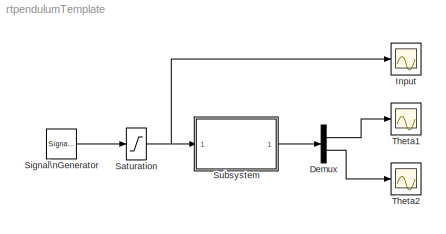
MODEL rtpendulumTemplate
KIND model
BLOCK [Demux] Demux
  DisplayOption = bar
  Outputs = 2
  Ports = [1, 2]
  SID = 1
BLOCK [Scope] Input
  DataFormat = StructureWithTime
  Floating = off
  NumInputPorts = 1
  Ports = [1]
  SID = 2
  SampleTime = 0
  ShowLegends = off
BLOCK [Saturate] Saturation
  InputPortMap = u0
  LowerLimit = -1
  Ports = [1, 1]
  SID = 3
  UpperLimit = 1
BLOCK [SignalGenerator] Signal\nGenerator
  Amplitude = 0.3
  Ports = [0, 1]
  SID = 4
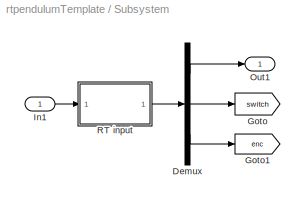
BLOCK [SubSystem] Subsystem
  FunctionWithSeparateData = off
  MaskDisplay = disp('Rotational\\nPendulum')
  MaskHideContents = off
  MaskIconFrame = on
  MaskIconOpaque = on
  MaskIconRotate = none
  MaskIconUnits = autoscale
  MaskPortRotate = default
  MinAlgLoopOccurrences = off
  Opaque = off
  Ports = [1, 1]
  PropExecContextOutsideSubsystem = off
  RTWSystemCode = Auto
  RequestExecContextInheritance = off
  SID = 5
BLOCK [Demux] Subsystem/Demux
  DisplayOption = bar
  Outputs = [2 4 1]
  Ports = [1, 3]
  SID = 7
BLOCK [Goto] Subsystem/Goto
  GotoTag = switch
  SID = 8
  TagVisibility = global
BLOCK [Goto] Subsystem/Goto1
  GotoTag = enc
  SID = 9
  TagVisibility = global
BLOCK [Inport] Subsystem/In1
  IconDisplay = Port number
  SID = 6
BLOCK [Outport] Subsystem/Out1
  IconDisplay = Port number
  SID = 22
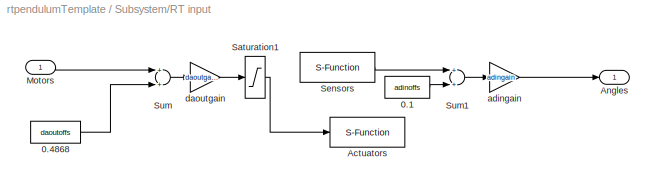
BLOCK [SubSystem] Subsystem/RT input
  FunctionWithSeparateData = off
  MaskCallbackString = |
  MaskDisplay = disp('Rotational\\nPendulum')
  MaskEnableString = on,on
  MaskHideContents = off
  MaskIconFrame = on
  MaskIconOpaque = on
  MaskIconRotate = none
  MaskIconUnits = autoscale
  MaskInitialization = hwinit;\n\n% initialize FPGA\nfugihandle = fugiboard('Open', 'Pendulum1');\nfugihandle.WatchdogTimeout = 0.5;\nfugiboard('SetParams', fugihandle);\nfugiboard('Write', fugihandle, 0, 0, 0, 0);  % dummy write to sync interface board\nfugiboard('Write', fugihandle, 5, 1, 0, 0);  % reset position, activate relay\ndata = fugiboard('Read', fugihandle);        % get version info from FPGA\n% model = bits...<+307ch>
  MaskPortRotate = default
  MaskPromptString = Sample time [s]:|Channels to read (e.g., [6 7])
  MaskStyleString = edit,edit
  MaskToolTipString = on,on
  MaskTunableValueString = on,on
  MaskValueString = h|[6 7]
  MaskVariables = Ts=@1;channels=@2;
  MaskVisibilityString = on,on
  MinAlgLoopOccurrences = off
  Opaque = off
  Ports = [1, 1]
  PropExecContextOutsideSubsystem = off
  RTWSystemCode = Auto
  RequestExecContextInheritance = off
  SID = 10
BLOCK [Constant] Subsystem/RT input/0.1
  SID = 12
  Value = adinoffs
BLOCK [Constant] Subsystem/RT input/0.4868
  SID = 13
  Value = daoutoffs
BLOCK [S-Function] Subsystem/RT input/Actuators
  EnableBusSupport = off
  FunctionName = sfusbout
  Parameters = Ts, fugihandle
  Ports = [1]
  SID = 14
BLOCK [Outport] Subsystem/RT input/Angles
  IconDisplay = Port number
  SID = 21
BLOCK [Inport] Subsystem/RT input/Motors
  IconDisplay = Port number
  SID = 11
BLOCK [Saturate] Subsystem/RT input/Saturation1
  InputPortMap = u0
  LowerLimit = -10
  Ports = [1, 1]
  SID = 15
  UpperLimit = 10
BLOCK [S-Function] Subsystem/RT input/Sensors
  EnableBusSupport = off
  FunctionName = sfusbin
  Parameters = Ts, fugihandle, channels
  Ports = [0, 1]
  SID = 16
BLOCK [Sum] Subsystem/RT input/Sum
  Ports = [2, 1]
  SID = 17
BLOCK [Sum] Subsystem/RT input/Sum1
  Ports = [2, 1]
  SID = 18
BLOCK [Gain] Subsystem/RT input/adingain
  Gain = adingain
  SID = 19
BLOCK [Gain] Subsystem/RT input/daoutgain
  Gain = daoutgain
  SID = 20
BLOCK [Scope] Theta1
  DataFormat = StructureWithTime
  Floating = off
  NumInputPorts = 1
  Ports = [1]
  SID = 23
  SampleTime = 0
  SaveName = ScopeData1
  ShowLegends = off
BLOCK [Scope] Theta2
  DataFormat = StructureWithTime
  Floating = off
  NumInputPorts = 1
  Ports = [1]
  SID = 24
  SampleTime = 0
  SaveName = ScopeData2
  ShowLegends = off
LINE Demux:1 -> Theta1:1
LINE Demux:2 -> Theta2:1
NET Saturation:1 -> Input:1, Subsystem:1
LINE Signal\nGenerator:1 -> Saturation:1
LINE Subsystem/Demux:1 -> Subsystem/Out1:1
LINE Subsystem/Demux:2 -> Subsystem/Goto:1
LINE Subsystem/Demux:3 -> Subsystem/Goto1:1
LINE Subsystem/In1:1 -> Subsystem/RT input:1
LINE Subsystem/RT input/0.1:1 -> Subsystem/RT input/Sum1:2
LINE Subsystem/RT input/0.4868:1 -> Subsystem/RT input/Sum:2
LINE Subsystem/RT input/Motors:1 -> Subsystem/RT input/Sum:1
LINE Subsystem/RT input/Saturation1:1 -> Subsystem/RT input/Actuators:1
LINE Subsystem/RT input/Sensors:1 -> Subsystem/RT input/Sum1:1
LINE Subsystem/RT input/Sum1:1 -> Subsystem/RT input/adingain:1
LINE Subsystem/RT input/Sum:1 -> Subsystem/RT input/daoutgain:1
LINE Subsystem/RT input/adingain:1 -> Subsystem/RT input/Angles:1
LINE Subsystem/RT input/daoutgain:1 -> Subsystem/RT input/Saturation1:1
LINE Subsystem/RT input:1 -> Subsystem/Demux:1
LINE Subsystem:1 -> Demux:1
note: NET lines group one-source signal fan-out (src -> all destinations, sorted); 1:1 wires keep LINE
